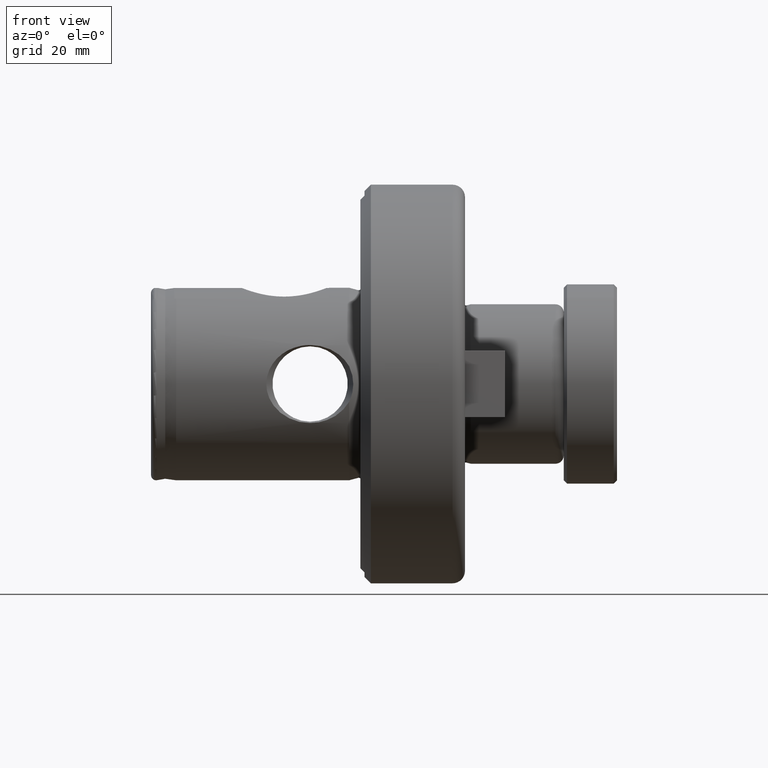
[diagram: clean part render]
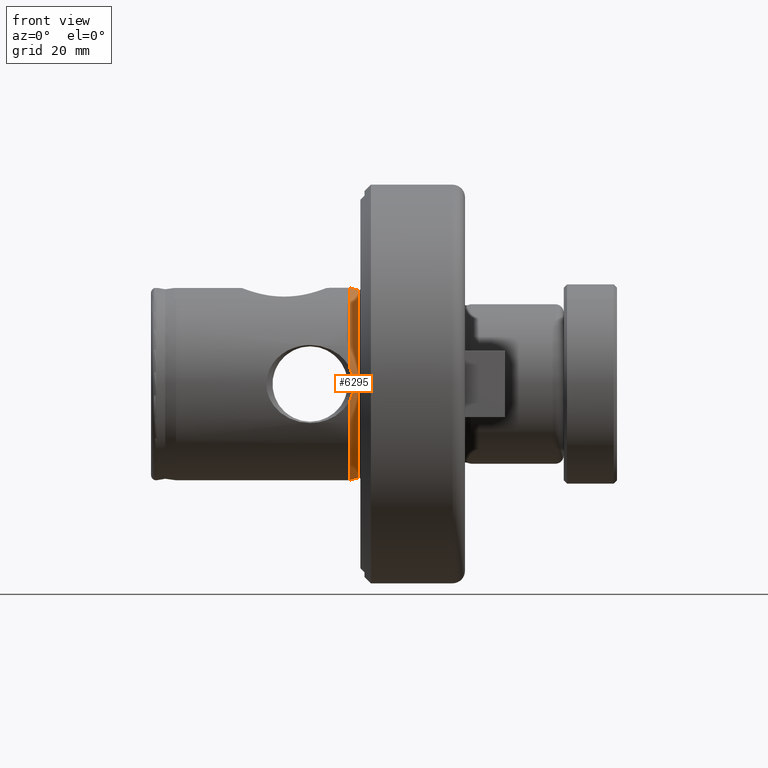
[diagram: same view with one face highlighted and labeled with its STEP entity id]
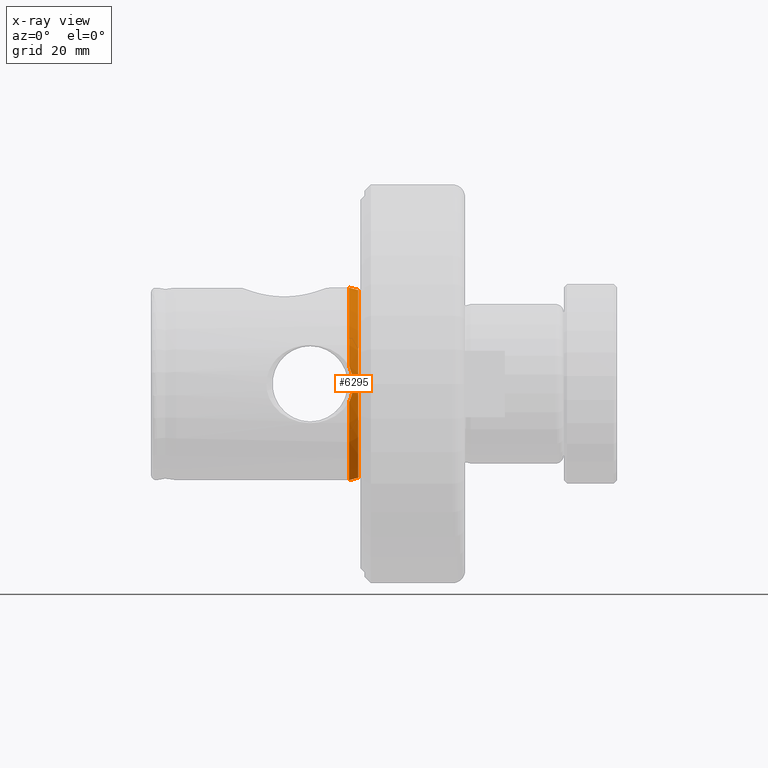
[diagram: x-ray of the same camera — body ghosted, the highlighted face saturated]
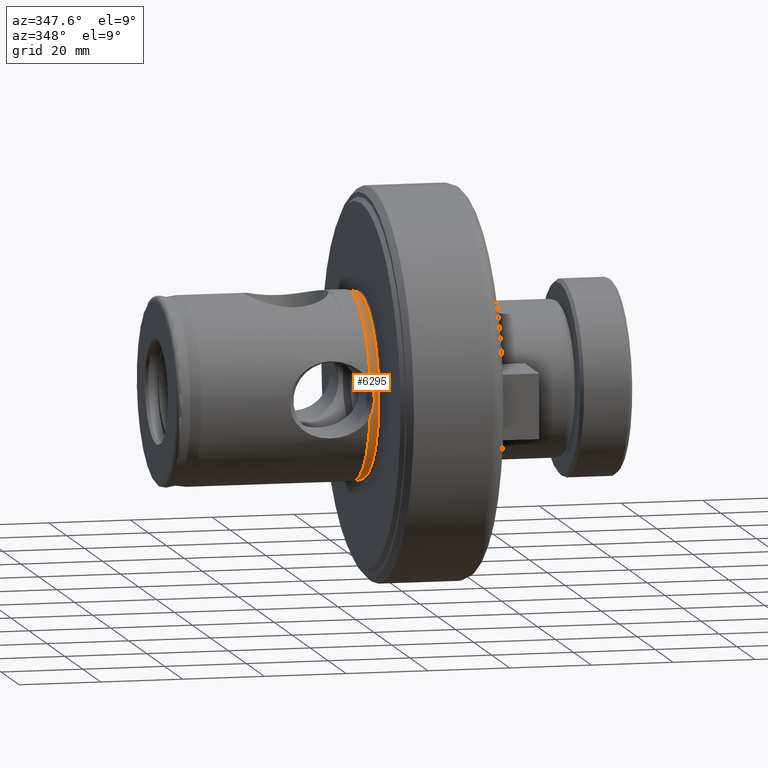
[diagram: same view with one face highlighted and labeled with its STEP entity id]
A machine part, front view. The second image highlights one B-rep face of the part: STEP entity #6295.
The next image is the same camera in x-ray: the body ghosted, the highlighted face saturated — about 0% of this face is hidden behind the body in this view.
A second angle (auxiliary view) of the same face is appended — the face is thin or edge-on in the first view.
In plain terms, the highlighted conical surface has half-angle 15 deg.
Its self-contained STEP definition (entity closure, byte-faithful):
#63 = CARTESIAN_POINT ( 'NONE',  ( 49.49559047744872900, 0.0000000000000000000, 0.0000000000000000000 ) ) ;
#65 = DIRECTION ( 'NONE',  ( -1.000000000000000000, -0.0000000000000000000, -0.0000000000000000000 ) ) ;
#66 = DIRECTION ( 'NONE',  ( 0.0000000000000000000, 0.0000000000000000000, 1.000000000000000000 ) ) ;
#256 = CARTESIAN_POINT ( 'NONE',  ( 49.49559047744872900, 0.0000000000000000000, 0.0000000000000000000 ) ) ;
#259 = DIRECTION ( 'NONE',  ( -1.000000000000000000, -0.0000000000000000000, -0.0000000000000000000 ) ) ;
#262 = DIRECTION ( 'NONE',  ( 0.0000000000000000000, 0.0000000000000000000, 1.000000000000000000 ) ) ;
#702 = CIRCLE ( 'NONE', #7079, 22.99999999999999300 ) ;
#735 = CIRCLE ( 'NONE', #7101, 22.99999999999999300 ) ;
#883 = CIRCLE ( 'NONE', #7167, 22.41703708685545800 ) ;
#984 = FACE_OUTER_BOUND ( 'NONE', #1656, .T. ) ;
#999 = CONICAL_SURFACE ( 'NONE', #7235, 22.41703708685545800, 0.2617993877991421400 ) ;
#1656 = EDGE_LOOP ( 'NONE', ( #2201, #2205, #2209, #2577, #2579, #2581 ) ) ;
#2201 = ORIENTED_EDGE ( 'NONE', *, *, #2925, .F. ) ;
#2205 = ORIENTED_EDGE ( 'NONE', *, *, #4815, .T. ) ;
#2209 = ORIENTED_EDGE ( 'NONE', *, *, #2928, .T. ) ;
#2244 = VECTOR ( 'NONE', #4963, 1000.000000000000000 ) ;
#2250 = VECTOR ( 'NONE', #4983, 1000.000000000000000 ) ;
#2251 = LINE ( 'NONE', #4957, #2244 ) ;
#2254 = LINE ( 'NONE', #4964, #2250 ) ;
#2577 = ORIENTED_EDGE ( 'NONE', *, *, #3029, .F. ) ;
#2579 = ORIENTED_EDGE ( 'NONE', *, *, #6453, .T. ) ;
#2581 = ORIENTED_EDGE ( 'NONE', *, *, #2994, .F. ) ;
#2925 = EDGE_CURVE ( 'NONE', #4626, #3866, #2251, .T. ) ;
#2928 = EDGE_CURVE ( 'NONE', #4630, #3861, #2254, .T. ) ;
#2994 = EDGE_CURVE ( 'NONE', #3866, #9292, #702, .T. ) ;
#3029 = EDGE_CURVE ( 'NONE', #9293, #3861, #735, .T. ) ;
#3861 = VERTEX_POINT ( 'NONE', #5781 ) ;
#3866 = VERTEX_POINT ( 'NONE', #5782 ) ;
#4626 = VERTEX_POINT ( 'NONE', #6080 ) ;
#4630 = VERTEX_POINT ( 'NONE', #6084 ) ;
#4815 = EDGE_CURVE ( 'NONE', #4626, #4630, #883, .T. ) ;
#4957 = CARTESIAN_POINT ( 'NONE',  ( 49.49559047744872900, 2.745295271478504300E-015, -22.41703708685545800 ) ) ;
#4963 = DIRECTION ( 'NONE',  ( -0.9659258262890702000, 3.169619151431678000E-017, -0.2588190451025136900 ) ) ;
#4964 = CARTESIAN_POINT ( 'NONE',  ( 49.49559047744872900, 0.0000000000000000000, 22.41703708685545800 ) ) ;
#4983 = DIRECTION ( 'NONE',  ( -0.9659258262890702000, 0.0000000000000000000, 0.2588190451025136900 ) ) ;
#5327 = CARTESIAN_POINT ( 'NONE',  ( 47.31994326666490000, 0.0000000000000000000, 0.0000000000000000000 ) ) ;
#5335 = DIRECTION ( 'NONE',  ( -1.000000000000000000, -0.0000000000000000000, -0.0000000000000000000 ) ) ;
#5336 = DIRECTION ( 'NONE',  ( 0.0000000000000000000, 0.0000000000000000000, 1.000000000000000000 ) ) ;
#5584 = CARTESIAN_POINT ( 'NONE',  ( 47.31994326666490000, 0.0000000000000000000, 0.0000000000000000000 ) ) ;
#5635 = DIRECTION ( 'NONE',  ( -1.000000000000000000, -0.0000000000000000000, -0.0000000000000000000 ) ) ;
#5636 = DIRECTION ( 'NONE',  ( 0.0000000000000000000, 0.0000000000000000000, 1.000000000000000000 ) ) ;
#5781 = CARTESIAN_POINT ( 'NONE',  ( 47.31994326666490000, 0.0000000000000000000, 22.99999999999999300 ) ) ;
#5782 = CARTESIAN_POINT ( 'NONE',  ( 47.31994326666490000, 2.816687638038912000E-015, -22.99999999999999300 ) ) ;
#6080 = CARTESIAN_POINT ( 'NONE',  ( 49.49559047744872900, 2.780991454758707900E-015, -22.41703708685545800 ) ) ;
#6084 = CARTESIAN_POINT ( 'NONE',  ( 49.49559047744872900, 0.0000000000000000000, 22.41703708685545800 ) ) ;
#6295 = ADVANCED_FACE ( 'NONE', ( #984 ), #999, .T. ) ;
#6453 = EDGE_CURVE ( 'NONE', #9293, #9292, #7375, .T. ) ;
#7079 = AXIS2_PLACEMENT_3D ( 'NONE', #5327, #5335, #5336 ) ;
#7101 = AXIS2_PLACEMENT_3D ( 'NONE', #5584, #5635, #5636 ) ;
#7167 = AXIS2_PLACEMENT_3D ( 'NONE', #63, #65, #66 ) ;
#7235 = AXIS2_PLACEMENT_3D ( 'NONE', #256, #259, #262 ) ;
#7375 = B_SPLINE_CURVE_WITH_KNOTS ( 'NONE', 3,
 ( #8136, #8140, #8141, #8142, #8143, #8144, #8145, #8146, #8147, #8148, #8149, #8150, #8151, #8152 ),
 .UNSPECIFIED., .F., .F.,
 ( 4, 2, 2, 2, 2, 2, 4 ),
 ( 4.477567452026602900E-007, 0.002185497562608133900, 0.003278022465539602300, 0.004370547368471071200, 0.006555597174334008000, 0.007648122077265476400, 0.008740646980196945700 ),
 .UNSPECIFIED. ) ;
#8136 = CARTESIAN_POINT ( 'NONE',  ( 47.31994326666490000, -22.60442801480919800, 4.247332589203338700 ) ) ;
#8140 = CARTESIAN_POINT ( 'NONE',  ( 47.64525988101431900, -22.64044284429700200, 3.583629896818664800 ) ) ;
#8141 = CARTESIAN_POINT ( 'NONE',  ( 47.89207829246915800, -22.67329034957470300, 2.897385929881286500 ) ) ;
#8142 = CARTESIAN_POINT ( 'NONE',  ( 48.14398314543964800, -22.70803509809381300, 1.833685574538338000 ) ) ;
#8143 = CARTESIAN_POINT ( 'NONE',  ( 48.20808305478444600, -22.71724243552288400, 1.473355848494145800 ) ) ;
#8144 = CARTESIAN_POINT ( 'NONE',  ( 48.29448389095733800, -22.72976220602052800, 0.7405393836539134700 ) ) ;
#8145 = CARTESIAN_POINT ( 'NONE',  ( 48.31615734109426800, -22.73297932230253700, 0.3710865744180165100 ) ) ;
#8146 = CARTESIAN_POINT ( 'NONE',  ( 48.31677366143484400, -22.73307008817933500, -0.7262688157784714700 ) ) ;
#8147 = CARTESIAN_POINT ( 'NONE',  ( 48.23302056791175800, -22.72034305954760900, -1.451302049454291000 ) ) ;
#8148 = CARTESIAN_POINT ( 'NONE',  ( 47.98004974023981400, -22.68541100043039900, -2.528998928640733300 ) ) ;
#8149 = CARTESIAN_POINT ( 'NONE',  ( 47.87481489874458900, -22.67125305119493800, -2.883791704348689100 ) ) ;
#8150 = CARTESIAN_POINT ( 'NONE',  ( 47.62627964524199300, -22.63979141485269200, -3.576284177557289600 ) ) ;
#8151 = CARTESIAN_POINT ( 'NONE',  ( 47.48267052300633400, -22.62244306270914500, -3.915340574672622000 ) ) ;
#8152 = CARTESIAN_POINT ( 'NONE',  ( 47.31994326666490000, -22.60442801480919800, -4.247332589203332500 ) ) ;
#8863 = CARTESIAN_POINT ( 'NONE',  ( 47.31994326666490000, -22.60442801480919800, -4.247332589203332500 ) ) ;
#8864 = CARTESIAN_POINT ( 'NONE',  ( 47.31994326666490000, -22.60442801480919800, 4.247332589203338700 ) ) ;
#9292 = VERTEX_POINT ( 'NONE', #8863 ) ;
#9293 = VERTEX_POINT ( 'NONE', #8864 ) ;